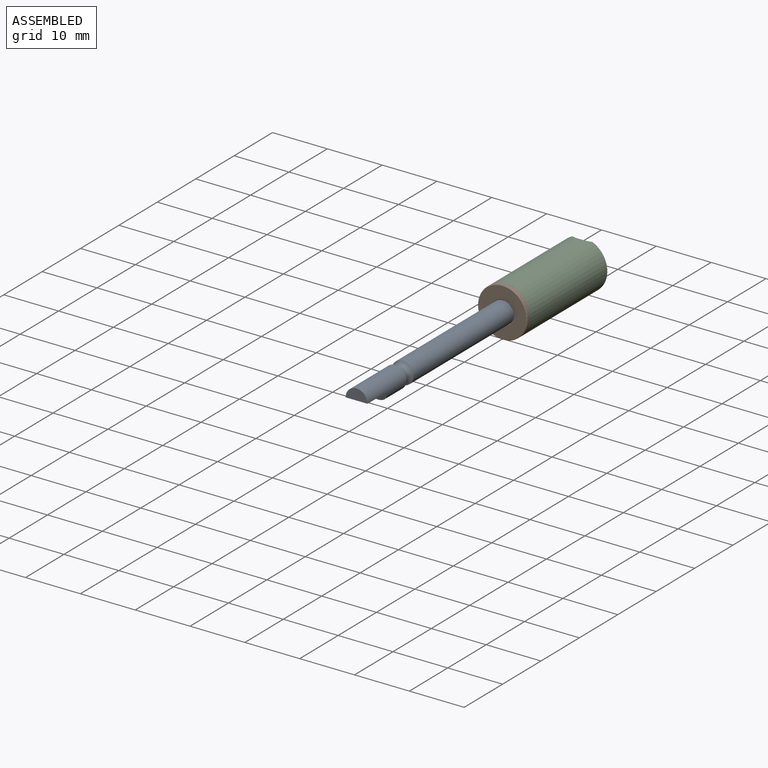
[diagram: assembled view]
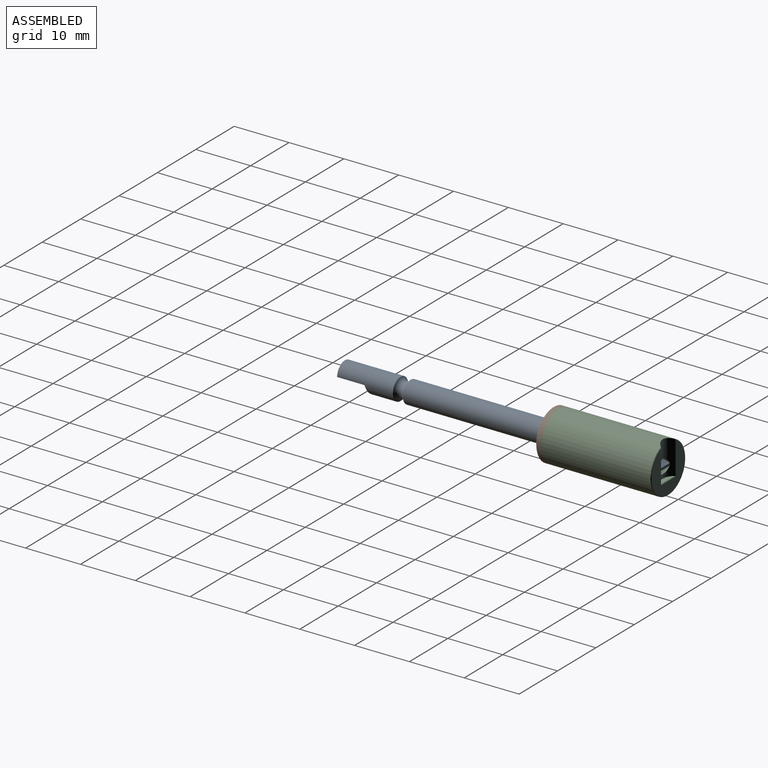
[diagram: assembled view, second angle]
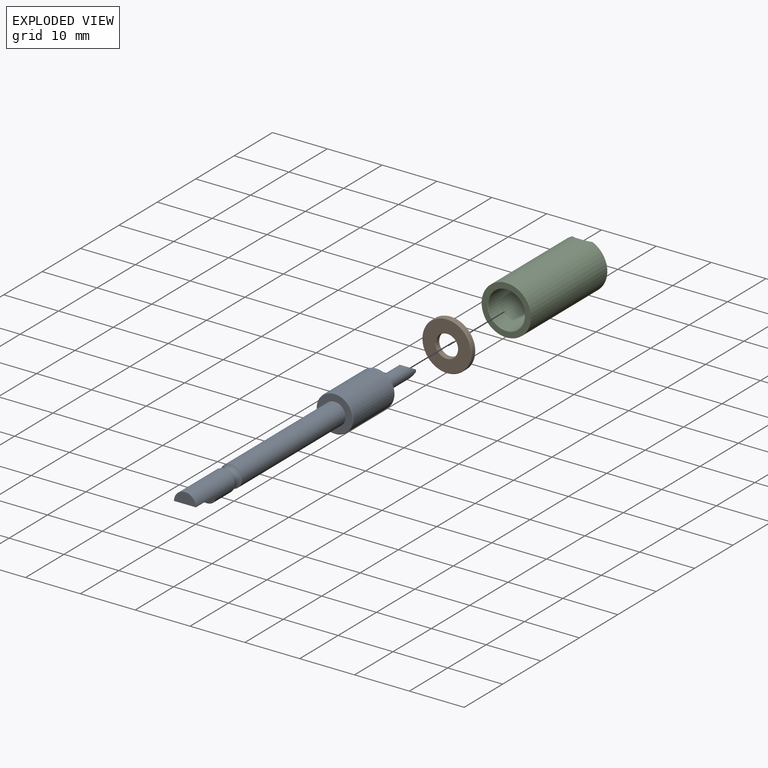
[diagram: exploded view]
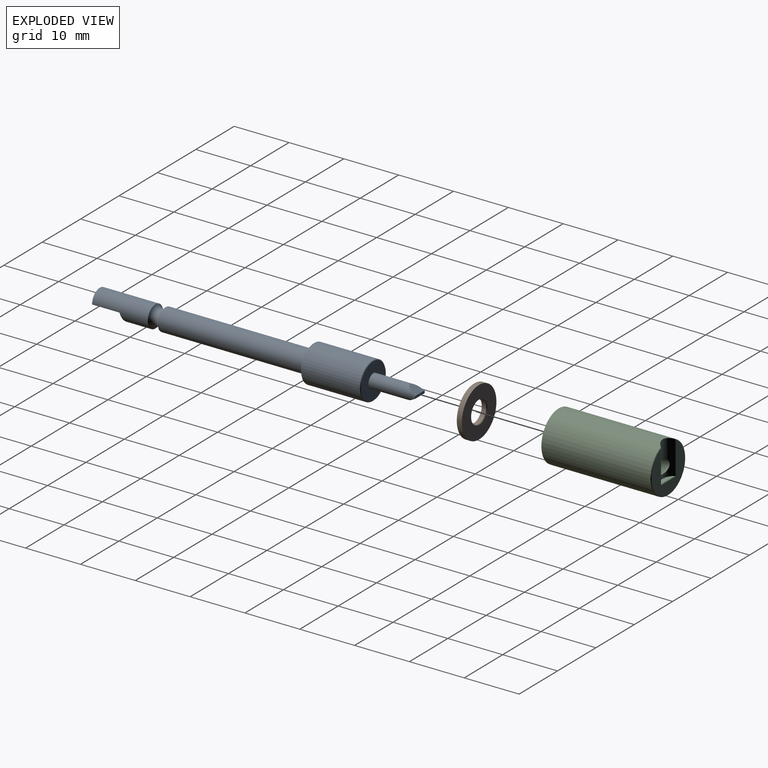
[diagram: exploded view, second angle]
ASSEMBLY  parts=3 mates=3
PART A: 15 faces, bbox 58.4x6.7x6.7 mm
  f0: plane 2.5x0.45mm, normal (-1,0,0), area 1.1mm2, adj f8,f11,f12
  f1: plane 4x2mm, normal (1,0,0), area 6.3mm2, adj f2,f9
  f2: cylinder r=2mm len=10.17mm, axis (-1,0,0), area 93.7mm2, adj f1,f3,f9,f10
  f3: torus R=2.4mm, axis (-1,0,0), area 23.4mm2, adj f2,f4
  f4: cylinder r=2mm len=27mm, axis (-1,0,0), area 339.3mm2, adj f3,f5
  f5: plane 6.5x6.5mm, normal (1,0,0), area 20.6mm2, adj f4,f14
  f6: cylinder r=3.35mm len=10.7mm, axis (-1,0,0), area 225.2mm2, adj f13,f14
  f7: plane 6.5x6.5mm, normal (-1,0,0), area 28.3mm2, adj f8,f13
  f8: cylinder r=1.25mm len=8.5mm, axis (-1,0,0), area 58.7mm2, adj f0,f7,f11,f12
  f9: plane 5x4mm, normal (0,-1,0), area 20mm2, adj f1,f2,f10
  f10: plane 4x2mm, normal (0.95,-0.31,0), area 6.6mm2, adj f2,f9
  f11: plane 2.46x1.8mm, normal (-0.49,-0.87,0), area 3.8mm2, adj f0,f8
  f12: plane 2.46x1.8mm, normal (-0.49,0.87,0), area 3.8mm2, adj f0,f8
  f13: cone r=3.25mm half-angle=45deg, axis (1,0,0), area 2.9mm2, adj f6,f7
  f14: cone r=3.35mm half-angle=45deg, axis (-1,0,0), area 2.9mm2, adj f5,f6
PART B: 7 faces, bbox 9x1x9 mm
  f0: cylinder r=4.5mm len=9mm, axis (0,-1,0), area 25.4mm2, adj f1,f5
  f1: plane 9x9mm, normal (0,1,0), area 49.8mm2, adj f0,f4
  f2: plane 8.8x8.8mm, normal (0,-1,0), area 47mm2, adj f5,f6
  f3: cylinder r=2mm len=4mm, axis (0,-1,0), area 10.1mm2, adj f4,f6
  f4: cone r=2.1mm half-angle=45deg, axis (0,1,0), area 1.8mm2, adj f1,f3
  f5: cone r=4.4mm half-angle=45deg, axis (0,1,0), area 4mm2, adj f0,f2
  f6: cone r=2mm half-angle=45deg, axis (0,-1,0), area 1.8mm2, adj f2,f3
PART C: 13 faces, bbox 9x20x9 mm
  f0: cylinder r=1.25mm len=2.5mm, axis (0,-1,0), area 9.3mm2, adj f4,f7
  f1: plane 8.8x8.36mm, normal (0,-1,0), area 36.5mm2, adj f8,f9,f10,f11
  f2: cylinder r=4.5mm len=19.9mm, axis (0,-1,0), area 560.4mm2, adj f3,f4,f10
  f3: plane 9x9mm, normal (0,1,0), area 26.2mm2, adj f2,f12
  f4: cylinder r=2.23mm len=6.56mm, axis (0,0,1), area 22.2mm2, adj f0,f2,f5,f8,f9,f10,f11
  f5: plane 3.59x0.9mm, normal (0,0,-1), area 2.3mm2, adj f4,f9
  f6: cylinder r=3.35mm len=17.9mm, axis (0,1,0), area 376.8mm2, adj f7,f12
  f7: plane 6.7x6.7mm, normal (0,1,0), area 30.3mm2, adj f0,f6
  f8: plane 6.15x0.08mm, normal (-0.46,-0.89,0), area 0.6mm2, adj f1,f4,f9,f10
  f9: plane 3.83x0.1mm, normal (0,-0.71,-0.71), area 0.5mm2, adj f1,f4,f5,f8,f11
  f10: cone r=4.4mm half-angle=45deg, axis (0,1,0), area 3.4mm2, adj f1,f2,f4,f8,f11
  f11: plane 6.15x0.08mm, normal (0.46,-0.89,0), area 0.6mm2, adj f1,f4,f9,f10
  f12: cone r=3.35mm half-angle=45deg, axis (0,1,0), area 3mm2, adj f3,f6
PLACE A rot(axis=(0.58,-0.58,-0.58),120deg) t=(1.28,-1.5,-3.84)mm
PLACE B t=(1.28,8.1,-3.84)mm
PLACE C rot(axis=(1,0,0),180deg) t=(1.28,29.1,-3.84)mm
MATE planar C.f0 <-> B.f0  axis (0,-1,0) through (1.28,9.1,-3.84)mm
MATE planar C.f0 <-> A.f2  axis (0,-1,0) through (1.28,9.1,-3.84)mm
MATE slider C.f0 <-> A.f2  axis (0,-1,0) through (1.28,9.1,-3.84)mm
